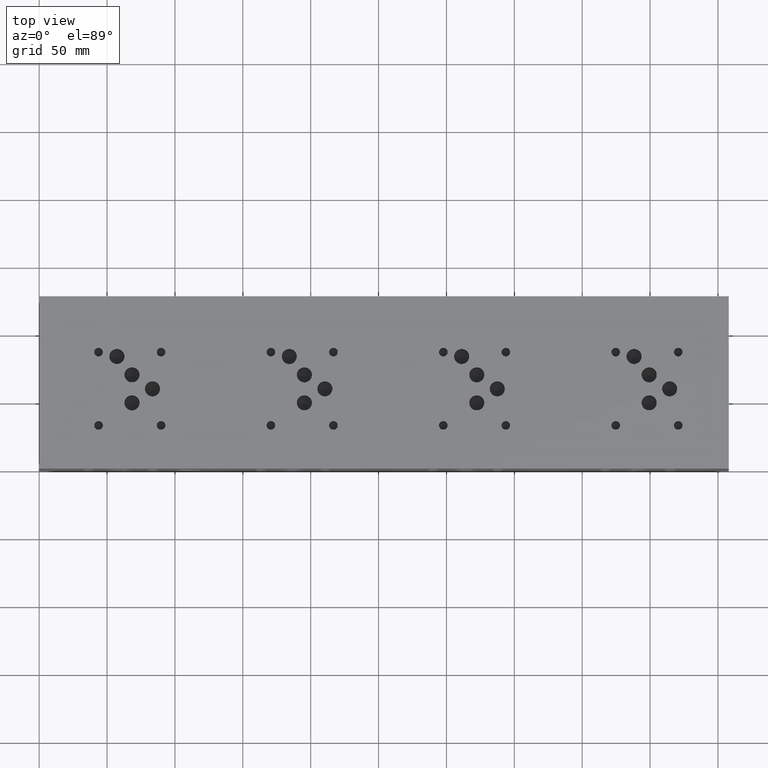
[diagram: clean part render]
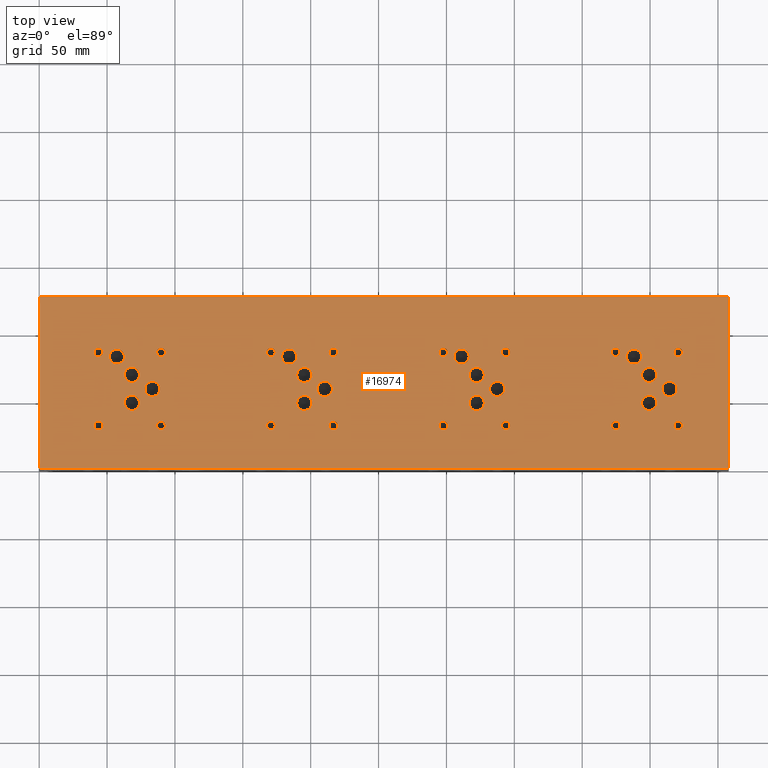
[diagram: same view with one face highlighted and labeled with its STEP entity id]
A machine part, top view. The second image highlights one B-rep face of the part: STEP entity #16974.
In plain terms, the highlighted planar face has unit normal (0, 0, 1).
Its self-contained STEP definition (entity closure, byte-faithful):
#575=CIRCLE('',#17510,5.56259999999998);
#576=CIRCLE('',#17511,5.56259999999998);
#579=CIRCLE('',#17516,5.56259999999998);
#580=CIRCLE('',#17517,5.56259999999998);
#583=CIRCLE('',#17522,5.56259999999998);
#584=CIRCLE('',#17523,5.56259999999998);
#587=CIRCLE('',#17528,5.56260000000002);
#588=CIRCLE('',#17529,5.56260000000002);
#595=CIRCLE('',#17542,5.56260000000002);
#596=CIRCLE('',#17543,5.56260000000002);
#599=CIRCLE('',#17548,5.56260000000002);
#600=CIRCLE('',#17549,5.56260000000002);
#603=CIRCLE('',#17554,5.56260000000002);
#604=CIRCLE('',#17555,5.56260000000002);
#607=CIRCLE('',#17560,5.56260000000002);
#608=CIRCLE('',#17561,5.56260000000002);
#903=CIRCLE('',#18092,5.56260000000002);
#904=CIRCLE('',#18093,5.56260000000002);
#907=CIRCLE('',#18098,5.56260000000002);
#908=CIRCLE('',#18099,5.56260000000002);
#911=CIRCLE('',#18104,5.56260000000002);
#912=CIRCLE('',#18105,5.56260000000002);
#915=CIRCLE('',#18110,5.56260000000002);
#916=CIRCLE('',#18111,5.56260000000002);
#919=CIRCLE('',#18116,5.5626);
#920=CIRCLE('',#18117,5.5626);
#923=CIRCLE('',#18122,5.5626);
#924=CIRCLE('',#18123,5.5626);
#927=CIRCLE('',#18128,5.5626);
#928=CIRCLE('',#18129,5.5626);
#931=CIRCLE('',#18134,5.5626);
#932=CIRCLE('',#18135,5.5626);
#940=CIRCLE('',#18147,3.175);
#941=CIRCLE('',#18148,3.175);
#947=CIRCLE('',#18158,3.175);
#948=CIRCLE('',#18159,3.175);
#954=CIRCLE('',#18169,3.175);
#955=CIRCLE('',#18170,3.175);
#961=CIRCLE('',#18180,3.175);
#962=CIRCLE('',#18181,3.175);
#968=CIRCLE('',#18191,3.175);
#969=CIRCLE('',#18192,3.175);
#975=CIRCLE('',#18202,3.175);
#976=CIRCLE('',#18203,3.175);
#982=CIRCLE('',#18213,3.175);
#983=CIRCLE('',#18214,3.175);
#989=CIRCLE('',#18224,3.175);
#990=CIRCLE('',#18225,3.175);
#996=CIRCLE('',#18235,3.175);
#997=CIRCLE('',#18236,3.175);
#1003=CIRCLE('',#18246,3.175);
#1004=CIRCLE('',#18247,3.175);
#1010=CIRCLE('',#18257,3.175);
#1011=CIRCLE('',#18258,3.175);
#1017=CIRCLE('',#18268,3.175);
#1018=CIRCLE('',#18269,3.175);
#1024=CIRCLE('',#18279,3.175);
#1025=CIRCLE('',#18280,3.175);
#1031=CIRCLE('',#18290,3.175);
#1032=CIRCLE('',#18291,3.175);
#1038=CIRCLE('',#18301,3.175);
#1039=CIRCLE('',#18302,3.175);
#1045=CIRCLE('',#18312,3.175);
#1046=CIRCLE('',#18313,3.175);
#1559=FACE_BOUND('',#3552,.T.);
#1560=FACE_BOUND('',#3553,.T.);
#1561=FACE_BOUND('',#3554,.T.);
#1562=FACE_BOUND('',#3555,.T.);
#1563=FACE_BOUND('',#3556,.T.);
#1564=FACE_BOUND('',#3557,.T.);
#1565=FACE_BOUND('',#3558,.T.);
#1566=FACE_BOUND('',#3559,.T.);
#1567=FACE_BOUND('',#3560,.T.);
#1568=FACE_BOUND('',#3561,.T.);
#1569=FACE_BOUND('',#3562,.T.);
#1570=FACE_BOUND('',#3563,.T.);
#1571=FACE_BOUND('',#3564,.T.);
#1572=FACE_BOUND('',#3565,.T.);
#1573=FACE_BOUND('',#3566,.T.);
#1574=FACE_BOUND('',#3567,.T.);
#1575=FACE_BOUND('',#3568,.T.);
#1576=FACE_BOUND('',#3569,.T.);
#1577=FACE_BOUND('',#3570,.T.);
#1578=FACE_BOUND('',#3571,.T.);
#1579=FACE_BOUND('',#3572,.T.);
#1580=FACE_BOUND('',#3573,.T.);
#1581=FACE_BOUND('',#3574,.T.);
#1582=FACE_BOUND('',#3575,.T.);
#1583=FACE_BOUND('',#3576,.T.);
#1584=FACE_BOUND('',#3577,.T.);
#1585=FACE_BOUND('',#3578,.T.);
#1586=FACE_BOUND('',#3579,.T.);
#1587=FACE_BOUND('',#3580,.T.);
#1588=FACE_BOUND('',#3581,.T.);
#1589=FACE_BOUND('',#3582,.T.);
#1590=FACE_BOUND('',#3583,.T.);
#2474=FACE_OUTER_BOUND('',#3551,.T.);
#3551=EDGE_LOOP('',(#15042,#15043,#15044,#15045));
#3552=EDGE_LOOP('',(#15046,#15047));
#3553=EDGE_LOOP('',(#15048,#15049));
#3554=EDGE_LOOP('',(#15050,#15051));
#3555=EDGE_LOOP('',(#15052,#15053));
#3556=EDGE_LOOP('',(#15054,#15055));
#3557=EDGE_LOOP('',(#15056,#15057));
#3558=EDGE_LOOP('',(#15058,#15059));
#3559=EDGE_LOOP('',(#15060,#15061));
#3560=EDGE_LOOP('',(#15062,#15063));
#3561=EDGE_LOOP('',(#15064,#15065));
#3562=EDGE_LOOP('',(#15066,#15067));
#3563=EDGE_LOOP('',(#15068,#15069));
#3564=EDGE_LOOP('',(#15070,#15071));
#3565=EDGE_LOOP('',(#15072,#15073));
#3566=EDGE_LOOP('',(#15074,#15075));
#3567=EDGE_LOOP('',(#15076,#15077));
#3568=EDGE_LOOP('',(#15078,#15079));
#3569=EDGE_LOOP('',(#15080,#15081));
#3570=EDGE_LOOP('',(#15082,#15083));
#3571=EDGE_LOOP('',(#15084,#15085));
#3572=EDGE_LOOP('',(#15086,#15087));
#3573=EDGE_LOOP('',(#15088,#15089));
#3574=EDGE_LOOP('',(#15090,#15091));
#3575=EDGE_LOOP('',(#15092,#15093));
#3576=EDGE_LOOP('',(#15094,#15095));
#3577=EDGE_LOOP('',(#15096,#15097));
#3578=EDGE_LOOP('',(#15098,#15099));
#3579=EDGE_LOOP('',(#15100,#15101));
#3580=EDGE_LOOP('',(#15102,#15103));
#3581=EDGE_LOOP('',(#15104,#15105));
#3582=EDGE_LOOP('',(#15106,#15107));
#3583=EDGE_LOOP('',(#15108,#15109));
#3620=LINE('',#22474,#5034);
#3948=LINE('',#24062,#5362);
#4006=LINE('',#24365,#5420);
#4998=LINE('',#29381,#6412);
#5034=VECTOR('',#18384,10.);
#5362=VECTOR('',#18940,10.);
#5420=VECTOR('',#19084,10.);
#6412=VECTOR('',#22390,10.);
#6437=VERTEX_POINT('',#22471);
#6438=VERTEX_POINT('',#22473);
#6920=VERTEX_POINT('',#24060);
#6994=VERTEX_POINT('',#24364);
#7527=VERTEX_POINT('',#27743);
#7528=VERTEX_POINT('',#27744);
#7532=VERTEX_POINT('',#27756);
#7533=VERTEX_POINT('',#27757);
#7537=VERTEX_POINT('',#27769);
#7538=VERTEX_POINT('',#27770);
#7542=VERTEX_POINT('',#27782);
#7543=VERTEX_POINT('',#27783);
#7553=VERTEX_POINT('',#27813);
#7554=VERTEX_POINT('',#27814);
#7558=VERTEX_POINT('',#27826);
#7559=VERTEX_POINT('',#27827);
#7563=VERTEX_POINT('',#27839);
#7564=VERTEX_POINT('',#27840);
#7568=VERTEX_POINT('',#27852);
#7569=VERTEX_POINT('',#27853);
#7926=VERTEX_POINT('',#28923);
#7927=VERTEX_POINT('',#28924);
#7931=VERTEX_POINT('',#28936);
#7932=VERTEX_POINT('',#28937);
#7936=VERTEX_POINT('',#28949);
#7937=VERTEX_POINT('',#28950);
#7941=VERTEX_POINT('',#28962);
#7942=VERTEX_POINT('',#28963);
#7946=VERTEX_POINT('',#28975);
#7947=VERTEX_POINT('',#28976);
#7951=VERTEX_POINT('',#28988);
#7952=VERTEX_POINT('',#28989);
#7956=VERTEX_POINT('',#29001);
#7957=VERTEX_POINT('',#29002);
#7961=VERTEX_POINT('',#29014);
#7962=VERTEX_POINT('',#29015);
#7972=VERTEX_POINT('',#29041);
#7973=VERTEX_POINT('',#29042);
#7980=VERTEX_POINT('',#29063);
#7981=VERTEX_POINT('',#29064);
#7988=VERTEX_POINT('',#29085);
#7989=VERTEX_POINT('',#29086);
#7996=VERTEX_POINT('',#29107);
#7997=VERTEX_POINT('',#29108);
#8004=VERTEX_POINT('',#29129);
#8005=VERTEX_POINT('',#29130);
#8012=VERTEX_POINT('',#29151);
#8013=VERTEX_POINT('',#29152);
#8020=VERTEX_POINT('',#29173);
#8021=VERTEX_POINT('',#29174);
#8028=VERTEX_POINT('',#29195);
#8029=VERTEX_POINT('',#29196);
#8036=VERTEX_POINT('',#29217);
#8037=VERTEX_POINT('',#29218);
#8044=VERTEX_POINT('',#29239);
#8045=VERTEX_POINT('',#29240);
#8052=VERTEX_POINT('',#29261);
#8053=VERTEX_POINT('',#29262);
#8060=VERTEX_POINT('',#29283);
#8061=VERTEX_POINT('',#29284);
#8068=VERTEX_POINT('',#29305);
#8069=VERTEX_POINT('',#29306);
#8076=VERTEX_POINT('',#29327);
#8077=VERTEX_POINT('',#29328);
#8084=VERTEX_POINT('',#29349);
#8085=VERTEX_POINT('',#29350);
#8092=VERTEX_POINT('',#29371);
#8093=VERTEX_POINT('',#29372);
#8129=EDGE_CURVE('',#6438,#6437,#3620,.T.);
#8661=EDGE_CURVE('',#6437,#6920,#3948,.T.);
#8759=EDGE_CURVE('',#6994,#6438,#4006,.T.);
#9697=EDGE_CURVE('',#7527,#7528,#575,.T.);
#9698=EDGE_CURVE('',#7528,#7527,#576,.T.);
#9703=EDGE_CURVE('',#7532,#7533,#579,.T.);
#9704=EDGE_CURVE('',#7533,#7532,#580,.T.);
#9709=EDGE_CURVE('',#7537,#7538,#583,.T.);
#9710=EDGE_CURVE('',#7538,#7537,#584,.T.);
#9715=EDGE_CURVE('',#7542,#7543,#587,.T.);
#9716=EDGE_CURVE('',#7543,#7542,#588,.T.);
#9729=EDGE_CURVE('',#7553,#7554,#595,.T.);
#9730=EDGE_CURVE('',#7554,#7553,#596,.T.);
#9735=EDGE_CURVE('',#7558,#7559,#599,.T.);
#9736=EDGE_CURVE('',#7559,#7558,#600,.T.);
#9741=EDGE_CURVE('',#7563,#7564,#603,.T.);
#9742=EDGE_CURVE('',#7564,#7563,#604,.T.);
#9747=EDGE_CURVE('',#7568,#7569,#607,.T.);
#9748=EDGE_CURVE('',#7569,#7568,#608,.T.);
#10224=EDGE_CURVE('',#7926,#7927,#903,.T.);
#10225=EDGE_CURVE('',#7927,#7926,#904,.T.);
#10230=EDGE_CURVE('',#7931,#7932,#907,.T.);
#10231=EDGE_CURVE('',#7932,#7931,#908,.T.);
#10236=EDGE_CURVE('',#7936,#7937,#911,.T.);
#10237=EDGE_CURVE('',#7937,#7936,#912,.T.);
#10242=EDGE_CURVE('',#7941,#7942,#915,.T.);
#10243=EDGE_CURVE('',#7942,#7941,#916,.T.);
#10248=EDGE_CURVE('',#7946,#7947,#919,.T.);
#10249=EDGE_CURVE('',#7947,#7946,#920,.T.);
#10254=EDGE_CURVE('',#7951,#7952,#923,.T.);
#10255=EDGE_CURVE('',#7952,#7951,#924,.T.);
#10260=EDGE_CURVE('',#7956,#7957,#927,.T.);
#10261=EDGE_CURVE('',#7957,#7956,#928,.T.);
#10266=EDGE_CURVE('',#7961,#7962,#931,.T.);
#10267=EDGE_CURVE('',#7962,#7961,#932,.T.);
#10278=EDGE_CURVE('',#7972,#7973,#940,.T.);
#10279=EDGE_CURVE('',#7973,#7972,#941,.T.);
#10288=EDGE_CURVE('',#7980,#7981,#947,.T.);
#10289=EDGE_CURVE('',#7981,#7980,#948,.T.);
#10298=EDGE_CURVE('',#7988,#7989,#954,.T.);
#10299=EDGE_CURVE('',#7989,#7988,#955,.T.);
#10308=EDGE_CURVE('',#7996,#7997,#961,.T.);
#10309=EDGE_CURVE('',#7997,#7996,#962,.T.);
#10318=EDGE_CURVE('',#8004,#8005,#968,.T.);
#10319=EDGE_CURVE('',#8005,#8004,#969,.T.);
#10328=EDGE_CURVE('',#8012,#8013,#975,.T.);
#10329=EDGE_CURVE('',#8013,#8012,#976,.T.);
#10338=EDGE_CURVE('',#8020,#8021,#982,.T.);
#10339=EDGE_CURVE('',#8021,#8020,#983,.T.);
#10348=EDGE_CURVE('',#8028,#8029,#989,.T.);
#10349=EDGE_CURVE('',#8029,#8028,#990,.T.);
#10358=EDGE_CURVE('',#8036,#8037,#996,.T.);
#10359=EDGE_CURVE('',#8037,#8036,#997,.T.);
#10368=EDGE_CURVE('',#8044,#8045,#1003,.T.);
#10369=EDGE_CURVE('',#8045,#8044,#1004,.T.);
#10378=EDGE_CURVE('',#8052,#8053,#1010,.T.);
#10379=EDGE_CURVE('',#8053,#8052,#1011,.T.);
#10388=EDGE_CURVE('',#8060,#8061,#1017,.T.);
#10389=EDGE_CURVE('',#8061,#8060,#1018,.T.);
#10398=EDGE_CURVE('',#8068,#8069,#1024,.T.);
#10399=EDGE_CURVE('',#8069,#8068,#1025,.T.);
#10408=EDGE_CURVE('',#8076,#8077,#1031,.T.);
#10409=EDGE_CURVE('',#8077,#8076,#1032,.T.);
#10418=EDGE_CURVE('',#8084,#8085,#1038,.T.);
#10419=EDGE_CURVE('',#8085,#8084,#1039,.T.);
#10428=EDGE_CURVE('',#8092,#8093,#1045,.T.);
#10429=EDGE_CURVE('',#8093,#8092,#1046,.T.);
#10433=EDGE_CURVE('',#6920,#6994,#4998,.T.);
#15042=ORIENTED_EDGE('',*,*,#8129,.T.);
#15043=ORIENTED_EDGE('',*,*,#8661,.T.);
#15044=ORIENTED_EDGE('',*,*,#10433,.T.);
#15045=ORIENTED_EDGE('',*,*,#8759,.T.);
#15046=ORIENTED_EDGE('',*,*,#9697,.T.);
#15047=ORIENTED_EDGE('',*,*,#9698,.T.);
#15048=ORIENTED_EDGE('',*,*,#9703,.T.);
#15049=ORIENTED_EDGE('',*,*,#9704,.T.);
#15050=ORIENTED_EDGE('',*,*,#9709,.T.);
#15051=ORIENTED_EDGE('',*,*,#9710,.T.);
#15052=ORIENTED_EDGE('',*,*,#9715,.T.);
#15053=ORIENTED_EDGE('',*,*,#9716,.T.);
#15054=ORIENTED_EDGE('',*,*,#9729,.T.);
#15055=ORIENTED_EDGE('',*,*,#9730,.T.);
#15056=ORIENTED_EDGE('',*,*,#9735,.T.);
#15057=ORIENTED_EDGE('',*,*,#9736,.T.);
#15058=ORIENTED_EDGE('',*,*,#9741,.T.);
#15059=ORIENTED_EDGE('',*,*,#9742,.T.);
#15060=ORIENTED_EDGE('',*,*,#9747,.T.);
#15061=ORIENTED_EDGE('',*,*,#9748,.T.);
#15062=ORIENTED_EDGE('',*,*,#10224,.T.);
#15063=ORIENTED_EDGE('',*,*,#10225,.T.);
#15064=ORIENTED_EDGE('',*,*,#10230,.T.);
#15065=ORIENTED_EDGE('',*,*,#10231,.T.);
#15066=ORIENTED_EDGE('',*,*,#10236,.T.);
#15067=ORIENTED_EDGE('',*,*,#10237,.T.);
#15068=ORIENTED_EDGE('',*,*,#10242,.T.);
#15069=ORIENTED_EDGE('',*,*,#10243,.T.);
#15070=ORIENTED_EDGE('',*,*,#10248,.T.);
#15071=ORIENTED_EDGE('',*,*,#10249,.T.);
#15072=ORIENTED_EDGE('',*,*,#10254,.T.);
#15073=ORIENTED_EDGE('',*,*,#10255,.T.);
#15074=ORIENTED_EDGE('',*,*,#10260,.T.);
#15075=ORIENTED_EDGE('',*,*,#10261,.T.);
#15076=ORIENTED_EDGE('',*,*,#10266,.T.);
#15077=ORIENTED_EDGE('',*,*,#10267,.T.);
#15078=ORIENTED_EDGE('',*,*,#10278,.T.);
#15079=ORIENTED_EDGE('',*,*,#10279,.T.);
#15080=ORIENTED_EDGE('',*,*,#10288,.T.);
#15081=ORIENTED_EDGE('',*,*,#10289,.T.);
#15082=ORIENTED_EDGE('',*,*,#10298,.T.);
#15083=ORIENTED_EDGE('',*,*,#10299,.T.);
#15084=ORIENTED_EDGE('',*,*,#10308,.T.);
#15085=ORIENTED_EDGE('',*,*,#10309,.T.);
#15086=ORIENTED_EDGE('',*,*,#10318,.T.);
#15087=ORIENTED_EDGE('',*,*,#10319,.T.);
#15088=ORIENTED_EDGE('',*,*,#10328,.T.);
#15089=ORIENTED_EDGE('',*,*,#10329,.T.);
#15090=ORIENTED_EDGE('',*,*,#10338,.T.);
#15091=ORIENTED_EDGE('',*,*,#10339,.T.);
#15092=ORIENTED_EDGE('',*,*,#10348,.T.);
#15093=ORIENTED_EDGE('',*,*,#10349,.T.);
#15094=ORIENTED_EDGE('',*,*,#10358,.T.);
#15095=ORIENTED_EDGE('',*,*,#10359,.T.);
#15096=ORIENTED_EDGE('',*,*,#10368,.T.);
#15097=ORIENTED_EDGE('',*,*,#10369,.T.);
#15098=ORIENTED_EDGE('',*,*,#10378,.T.);
#15099=ORIENTED_EDGE('',*,*,#10379,.T.);
#15100=ORIENTED_EDGE('',*,*,#10388,.T.);
#15101=ORIENTED_EDGE('',*,*,#10389,.T.);
#15102=ORIENTED_EDGE('',*,*,#10398,.T.);
#15103=ORIENTED_EDGE('',*,*,#10399,.T.);
#15104=ORIENTED_EDGE('',*,*,#10408,.T.);
#15105=ORIENTED_EDGE('',*,*,#10409,.T.);
#15106=ORIENTED_EDGE('',*,*,#10418,.T.);
#15107=ORIENTED_EDGE('',*,*,#10419,.T.);
#15108=ORIENTED_EDGE('',*,*,#10428,.T.);
#15109=ORIENTED_EDGE('',*,*,#10429,.T.);
#15570=PLANE('',#18319);
#16974=ADVANCED_FACE('',(#2474,#1559,#1560,#1561,#1562,#1563,#1564,#1565,
#1566,#1567,#1568,#1569,#1570,#1571,#1572,#1573,#1574,#1575,#1576,#1577,
#1578,#1579,#1580,#1581,#1582,#1583,#1584,#1585,#1586,#1587,#1588,#1589,
#1590),#15570,.T.);
#17510=AXIS2_PLACEMENT_3D('',#27745,#20512,#20513);
#17511=AXIS2_PLACEMENT_3D('',#27746,#20514,#20515);
#17516=AXIS2_PLACEMENT_3D('',#27758,#20526,#20527);
#17517=AXIS2_PLACEMENT_3D('',#27759,#20528,#20529);
#17522=AXIS2_PLACEMENT_3D('',#27771,#20540,#20541);
#17523=AXIS2_PLACEMENT_3D('',#27772,#20542,#20543);
#17528=AXIS2_PLACEMENT_3D('',#27784,#20554,#20555);
#17529=AXIS2_PLACEMENT_3D('',#27785,#20556,#20557);
#17542=AXIS2_PLACEMENT_3D('',#27815,#20588,#20589);
#17543=AXIS2_PLACEMENT_3D('',#27816,#20590,#20591);
#17548=AXIS2_PLACEMENT_3D('',#27828,#20602,#20603);
#17549=AXIS2_PLACEMENT_3D('',#27829,#20604,#20605);
#17554=AXIS2_PLACEMENT_3D('',#27841,#20616,#20617);
#17555=AXIS2_PLACEMENT_3D('',#27842,#20618,#20619);
#17560=AXIS2_PLACEMENT_3D('',#27854,#20630,#20631);
#17561=AXIS2_PLACEMENT_3D('',#27855,#20632,#20633);
#18092=AXIS2_PLACEMENT_3D('',#28925,#21875,#21876);
#18093=AXIS2_PLACEMENT_3D('',#28926,#21877,#21878);
#18098=AXIS2_PLACEMENT_3D('',#28938,#21889,#21890);
#18099=AXIS2_PLACEMENT_3D('',#28939,#21891,#21892);
#18104=AXIS2_PLACEMENT_3D('',#28951,#21903,#21904);
#18105=AXIS2_PLACEMENT_3D('',#28952,#21905,#21906);
#18110=AXIS2_PLACEMENT_3D('',#28964,#21917,#21918);
#18111=AXIS2_PLACEMENT_3D('',#28965,#21919,#21920);
#18116=AXIS2_PLACEMENT_3D('',#28977,#21931,#21932);
#18117=AXIS2_PLACEMENT_3D('',#28978,#21933,#21934);
#18122=AXIS2_PLACEMENT_3D('',#28990,#21945,#21946);
#18123=AXIS2_PLACEMENT_3D('',#28991,#21947,#21948);
#18128=AXIS2_PLACEMENT_3D('',#29003,#21959,#21960);
#18129=AXIS2_PLACEMENT_3D('',#29004,#21961,#21962);
#18134=AXIS2_PLACEMENT_3D('',#29016,#21973,#21974);
#18135=AXIS2_PLACEMENT_3D('',#29017,#21975,#21976);
#18147=AXIS2_PLACEMENT_3D('',#29043,#22002,#22003);
#18148=AXIS2_PLACEMENT_3D('',#29044,#22004,#22005);
#18158=AXIS2_PLACEMENT_3D('',#29065,#22027,#22028);
#18159=AXIS2_PLACEMENT_3D('',#29066,#22029,#22030);
#18169=AXIS2_PLACEMENT_3D('',#29087,#22052,#22053);
#18170=AXIS2_PLACEMENT_3D('',#29088,#22054,#22055);
#18180=AXIS2_PLACEMENT_3D('',#29109,#22077,#22078);
#18181=AXIS2_PLACEMENT_3D('',#29110,#22079,#22080);
#18191=AXIS2_PLACEMENT_3D('',#29131,#22102,#22103);
#18192=AXIS2_PLACEMENT_3D('',#29132,#22104,#22105);
#18202=AXIS2_PLACEMENT_3D('',#29153,#22127,#22128);
#18203=AXIS2_PLACEMENT_3D('',#29154,#22129,#22130);
#18213=AXIS2_PLACEMENT_3D('',#29175,#22152,#22153);
#18214=AXIS2_PLACEMENT_3D('',#29176,#22154,#22155);
#18224=AXIS2_PLACEMENT_3D('',#29197,#22177,#22178);
#18225=AXIS2_PLACEMENT_3D('',#29198,#22179,#22180);
#18235=AXIS2_PLACEMENT_3D('',#29219,#22202,#22203);
#18236=AXIS2_PLACEMENT_3D('',#29220,#22204,#22205);
#18246=AXIS2_PLACEMENT_3D('',#29241,#22227,#22228);
#18247=AXIS2_PLACEMENT_3D('',#29242,#22229,#22230);
#18257=AXIS2_PLACEMENT_3D('',#29263,#22252,#22253);
#18258=AXIS2_PLACEMENT_3D('',#29264,#22254,#22255);
#18268=AXIS2_PLACEMENT_3D('',#29285,#22277,#22278);
#18269=AXIS2_PLACEMENT_3D('',#29286,#22279,#22280);
#18279=AXIS2_PLACEMENT_3D('',#29307,#22302,#22303);
#18280=AXIS2_PLACEMENT_3D('',#29308,#22304,#22305);
#18290=AXIS2_PLACEMENT_3D('',#29329,#22327,#22328);
#18291=AXIS2_PLACEMENT_3D('',#29330,#22329,#22330);
#18301=AXIS2_PLACEMENT_3D('',#29351,#22352,#22353);
#18302=AXIS2_PLACEMENT_3D('',#29352,#22354,#22355);
#18312=AXIS2_PLACEMENT_3D('',#29373,#22377,#22378);
#18313=AXIS2_PLACEMENT_3D('',#29374,#22379,#22380);
#18319=AXIS2_PLACEMENT_3D('',#29384,#22395,#22396);
#18384=DIRECTION('',(1.,0.,0.));
#18940=DIRECTION('',(0.,1.,0.));
#19084=DIRECTION('',(0.,-1.,0.));
#20512=DIRECTION('center_axis',(0.,0.,-1.));
#20513=DIRECTION('ref_axis',(1.,0.,0.));
#20514=DIRECTION('center_axis',(0.,0.,-1.));
#20515=DIRECTION('ref_axis',(1.,0.,0.));
#20526=DIRECTION('center_axis',(0.,0.,-1.));
#20527=DIRECTION('ref_axis',(1.,0.,0.));
#20528=DIRECTION('center_axis',(0.,0.,-1.));
#20529=DIRECTION('ref_axis',(1.,0.,0.));
#20540=DIRECTION('center_axis',(0.,0.,-1.));
#20541=DIRECTION('ref_axis',(1.,0.,0.));
#20542=DIRECTION('center_axis',(0.,0.,-1.));
#20543=DIRECTION('ref_axis',(1.,0.,0.));
#20554=DIRECTION('center_axis',(0.,0.,-1.));
#20555=DIRECTION('ref_axis',(1.,0.,0.));
#20556=DIRECTION('center_axis',(0.,0.,-1.));
#20557=DIRECTION('ref_axis',(1.,0.,0.));
#20588=DIRECTION('center_axis',(0.,0.,-1.));
#20589=DIRECTION('ref_axis',(1.,0.,0.));
#20590=DIRECTION('center_axis',(0.,0.,-1.));
#20591=DIRECTION('ref_axis',(1.,0.,0.));
#20602=DIRECTION('center_axis',(0.,0.,-1.));
#20603=DIRECTION('ref_axis',(1.,0.,0.));
#20604=DIRECTION('center_axis',(0.,0.,-1.));
#20605=DIRECTION('ref_axis',(1.,0.,0.));
#20616=DIRECTION('center_axis',(0.,0.,-1.));
#20617=DIRECTION('ref_axis',(1.,0.,0.));
#20618=DIRECTION('center_axis',(0.,0.,-1.));
#20619=DIRECTION('ref_axis',(1.,0.,0.));
#20630=DIRECTION('center_axis',(0.,0.,-1.));
#20631=DIRECTION('ref_axis',(1.,0.,0.));
#20632=DIRECTION('center_axis',(0.,0.,-1.));
#20633=DIRECTION('ref_axis',(1.,0.,0.));
#21875=DIRECTION('center_axis',(0.,0.,-1.));
#21876=DIRECTION('ref_axis',(1.,0.,0.));
#21877=DIRECTION('center_axis',(0.,0.,-1.));
#21878=DIRECTION('ref_axis',(1.,0.,0.));
#21889=DIRECTION('center_axis',(0.,0.,-1.));
#21890=DIRECTION('ref_axis',(1.,0.,0.));
#21891=DIRECTION('center_axis',(0.,0.,-1.));
#21892=DIRECTION('ref_axis',(1.,0.,0.));
#21903=DIRECTION('center_axis',(0.,0.,-1.));
#21904=DIRECTION('ref_axis',(1.,0.,0.));
#21905=DIRECTION('center_axis',(0.,0.,-1.));
#21906=DIRECTION('ref_axis',(1.,0.,0.));
#21917=DIRECTION('center_axis',(0.,0.,-1.));
#21918=DIRECTION('ref_axis',(1.,0.,0.));
#21919=DIRECTION('center_axis',(0.,0.,-1.));
#21920=DIRECTION('ref_axis',(1.,0.,0.));
#21931=DIRECTION('center_axis',(0.,0.,-1.));
#21932=DIRECTION('ref_axis',(1.,0.,0.));
#21933=DIRECTION('center_axis',(0.,0.,-1.));
#21934=DIRECTION('ref_axis',(1.,0.,0.));
#21945=DIRECTION('center_axis',(0.,0.,-1.));
#21946=DIRECTION('ref_axis',(1.,0.,0.));
#21947=DIRECTION('center_axis',(0.,0.,-1.));
#21948=DIRECTION('ref_axis',(1.,0.,0.));
#21959=DIRECTION('center_axis',(0.,0.,-1.));
#21960=DIRECTION('ref_axis',(1.,0.,0.));
#21961=DIRECTION('center_axis',(0.,0.,-1.));
#21962=DIRECTION('ref_axis',(1.,0.,0.));
#21973=DIRECTION('center_axis',(0.,0.,-1.));
#21974=DIRECTION('ref_axis',(1.,0.,0.));
#21975=DIRECTION('center_axis',(0.,0.,-1.));
#21976=DIRECTION('ref_axis',(1.,0.,0.));
#22002=DIRECTION('center_axis',(0.,0.,-1.));
#22003=DIRECTION('ref_axis',(1.,0.,0.));
#22004=DIRECTION('center_axis',(0.,0.,-1.));
#22005=DIRECTION('ref_axis',(1.,0.,0.));
#22027=DIRECTION('center_axis',(0.,0.,-1.));
#22028=DIRECTION('ref_axis',(1.,0.,0.));
#22029=DIRECTION('center_axis',(0.,0.,-1.));
#22030=DIRECTION('ref_axis',(1.,0.,0.));
#22052=DIRECTION('center_axis',(0.,0.,-1.));
#22053=DIRECTION('ref_axis',(1.,0.,0.));
#22054=DIRECTION('center_axis',(0.,0.,-1.));
#22055=DIRECTION('ref_axis',(1.,0.,0.));
#22077=DIRECTION('center_axis',(0.,0.,-1.));
#22078=DIRECTION('ref_axis',(1.,0.,0.));
#22079=DIRECTION('center_axis',(0.,0.,-1.));
#22080=DIRECTION('ref_axis',(1.,0.,0.));
#22102=DIRECTION('center_axis',(0.,0.,-1.));
#22103=DIRECTION('ref_axis',(1.,0.,0.));
#22104=DIRECTION('center_axis',(0.,0.,-1.));
#22105=DIRECTION('ref_axis',(1.,0.,0.));
#22127=DIRECTION('center_axis',(0.,0.,-1.));
#22128=DIRECTION('ref_axis',(1.,0.,0.));
#22129=DIRECTION('center_axis',(0.,0.,-1.));
#22130=DIRECTION('ref_axis',(1.,0.,0.));
#22152=DIRECTION('center_axis',(0.,0.,-1.));
#22153=DIRECTION('ref_axis',(1.,0.,0.));
#22154=DIRECTION('center_axis',(0.,0.,-1.));
#22155=DIRECTION('ref_axis',(1.,0.,0.));
#22177=DIRECTION('center_axis',(0.,0.,-1.));
#22178=DIRECTION('ref_axis',(1.,0.,0.));
#22179=DIRECTION('center_axis',(0.,0.,-1.));
#22180=DIRECTION('ref_axis',(1.,0.,0.));
#22202=DIRECTION('center_axis',(0.,0.,-1.));
#22203=DIRECTION('ref_axis',(1.,0.,0.));
#22204=DIRECTION('center_axis',(0.,0.,-1.));
#22205=DIRECTION('ref_axis',(1.,0.,0.));
#22227=DIRECTION('center_axis',(0.,0.,-1.));
#22228=DIRECTION('ref_axis',(1.,0.,0.));
#22229=DIRECTION('center_axis',(0.,0.,-1.));
#22230=DIRECTION('ref_axis',(1.,0.,0.));
#22252=DIRECTION('center_axis',(0.,0.,-1.));
#22253=DIRECTION('ref_axis',(1.,0.,0.));
#22254=DIRECTION('center_axis',(0.,0.,-1.));
#22255=DIRECTION('ref_axis',(1.,0.,0.));
#22277=DIRECTION('center_axis',(0.,0.,-1.));
#22278=DIRECTION('ref_axis',(1.,0.,0.));
#22279=DIRECTION('center_axis',(0.,0.,-1.));
#22280=DIRECTION('ref_axis',(1.,0.,0.));
#22302=DIRECTION('center_axis',(0.,0.,-1.));
#22303=DIRECTION('ref_axis',(1.,0.,0.));
#22304=DIRECTION('center_axis',(0.,0.,-1.));
#22305=DIRECTION('ref_axis',(1.,0.,0.));
#22327=DIRECTION('center_axis',(0.,0.,-1.));
#22328=DIRECTION('ref_axis',(1.,0.,0.));
#22329=DIRECTION('center_axis',(0.,0.,-1.));
#22330=DIRECTION('ref_axis',(1.,0.,0.));
#22352=DIRECTION('center_axis',(0.,0.,-1.));
#22353=DIRECTION('ref_axis',(1.,0.,0.));
#22354=DIRECTION('center_axis',(0.,0.,-1.));
#22355=DIRECTION('ref_axis',(1.,0.,0.));
#22377=DIRECTION('center_axis',(0.,0.,-1.));
#22378=DIRECTION('ref_axis',(1.,0.,0.));
#22379=DIRECTION('center_axis',(0.,0.,-1.));
#22380=DIRECTION('ref_axis',(1.,0.,0.));
#22390=DIRECTION('',(-1.,0.,0.));
#22395=DIRECTION('center_axis',(0.,0.,1.));
#22396=DIRECTION('ref_axis',(1.,0.,0.));
#22471=CARTESIAN_POINT('',(508.,0.,127.));
#22473=CARTESIAN_POINT('',(0.,0.,127.));
#22474=CARTESIAN_POINT('',(0.,0.,127.));
#24060=CARTESIAN_POINT('',(508.,127.,127.));
#24062=CARTESIAN_POINT('',(508.,0.,127.));
#24364=CARTESIAN_POINT('',(0.,127.,127.));
#24365=CARTESIAN_POINT('',(0.,127.,127.));
#27743=CARTESIAN_POINT('',(200.8632,48.4378,127.));
#27744=CARTESIAN_POINT('',(189.738,48.4378,127.));
#27745=CARTESIAN_POINT('Origin',(195.3006,48.4378,127.));
#27746=CARTESIAN_POINT('Origin',(195.3006,48.4378,127.));
#27756=CARTESIAN_POINT('',(200.8632,69.0626,127.));
#27757=CARTESIAN_POINT('',(189.738,69.0626,127.));
#27758=CARTESIAN_POINT('Origin',(195.3006,69.0626,127.));
#27759=CARTESIAN_POINT('Origin',(195.3006,69.0626,127.));
#27769=CARTESIAN_POINT('',(189.738,82.5754,127.));
#27770=CARTESIAN_POINT('',(178.6128,82.5754,127.));
#27771=CARTESIAN_POINT('Origin',(184.1754,82.5754,127.));
#27772=CARTESIAN_POINT('Origin',(184.1754,82.5754,127.));
#27782=CARTESIAN_POINT('',(215.9508,58.7502,127.));
#27783=CARTESIAN_POINT('',(204.8256,58.7502,127.));
#27784=CARTESIAN_POINT('Origin',(210.3882,58.7502,127.));
#27785=CARTESIAN_POINT('Origin',(210.3882,58.7502,127.));
#27813=CARTESIAN_POINT('',(454.8632,48.4378,127.));
#27814=CARTESIAN_POINT('',(443.738,48.4378,127.));
#27815=CARTESIAN_POINT('Origin',(449.3006,48.4378,127.));
#27816=CARTESIAN_POINT('Origin',(449.3006,48.4378,127.));
#27826=CARTESIAN_POINT('',(454.8632,69.0626,127.));
#27827=CARTESIAN_POINT('',(443.738,69.0626,127.));
#27828=CARTESIAN_POINT('Origin',(449.3006,69.0626,127.));
#27829=CARTESIAN_POINT('Origin',(449.3006,69.0626,127.));
#27839=CARTESIAN_POINT('',(443.738,82.5754,127.));
#27840=CARTESIAN_POINT('',(432.6128,82.5754,127.));
#27841=CARTESIAN_POINT('Origin',(438.1754,82.5754,127.));
#27842=CARTESIAN_POINT('Origin',(438.1754,82.5754,127.));
#27852=CARTESIAN_POINT('',(469.9508,58.7502,127.));
#27853=CARTESIAN_POINT('',(458.8256,58.7502,127.));
#27854=CARTESIAN_POINT('Origin',(464.3882,58.7502,127.));
#27855=CARTESIAN_POINT('Origin',(464.3882,58.7502,127.));
#28923=CARTESIAN_POINT('',(327.8632,48.4378,127.));
#28924=CARTESIAN_POINT('',(316.738,48.4378,127.));
#28925=CARTESIAN_POINT('Origin',(322.3006,48.4378,127.));
#28926=CARTESIAN_POINT('Origin',(322.3006,48.4378,127.));
#28936=CARTESIAN_POINT('',(327.8632,69.0626,127.));
#28937=CARTESIAN_POINT('',(316.738,69.0626,127.));
#28938=CARTESIAN_POINT('Origin',(322.3006,69.0626,127.));
#28939=CARTESIAN_POINT('Origin',(322.3006,69.0626,127.));
#28949=CARTESIAN_POINT('',(316.738,82.5754,127.));
#28950=CARTESIAN_POINT('',(305.6128,82.5754,127.));
#28951=CARTESIAN_POINT('Origin',(311.1754,82.5754,127.));
#28952=CARTESIAN_POINT('Origin',(311.1754,82.5754,127.));
#28962=CARTESIAN_POINT('',(342.9508,58.7502,127.));
#28963=CARTESIAN_POINT('',(331.8256,58.7502,127.));
#28964=CARTESIAN_POINT('Origin',(337.3882,58.7502,127.));
#28965=CARTESIAN_POINT('Origin',(337.3882,58.7502,127.));
#28975=CARTESIAN_POINT('',(73.85558,48.43272,127.));
#28976=CARTESIAN_POINT('',(62.73038,48.43272,127.));
#28977=CARTESIAN_POINT('Origin',(68.29298,48.43272,127.));
#28978=CARTESIAN_POINT('Origin',(68.29298,48.43272,127.));
#28988=CARTESIAN_POINT('',(73.8505,69.06768,127.));
#28989=CARTESIAN_POINT('',(62.7253,69.06768,127.));
#28990=CARTESIAN_POINT('Origin',(68.2879,69.06768,127.));
#28991=CARTESIAN_POINT('Origin',(68.2879,69.06768,127.));
#29001=CARTESIAN_POINT('',(62.738,82.5754,127.));
#29002=CARTESIAN_POINT('',(51.6128,82.5754,127.));
#29003=CARTESIAN_POINT('Origin',(57.1754,82.5754,127.));
#29004=CARTESIAN_POINT('Origin',(57.1754,82.5754,127.));
#29014=CARTESIAN_POINT('',(88.9508,58.7502,127.));
#29015=CARTESIAN_POINT('',(77.8256,58.7502,127.));
#29016=CARTESIAN_POINT('Origin',(83.3882,58.7502,127.));
#29017=CARTESIAN_POINT('Origin',(83.3882,58.7502,127.));
#29041=CARTESIAN_POINT('',(219.8878,31.7754,127.));
#29042=CARTESIAN_POINT('',(213.5378,31.7754,127.));
#29043=CARTESIAN_POINT('Origin',(216.7128,31.7754,127.));
#29044=CARTESIAN_POINT('Origin',(216.7128,31.7754,127.));
#29063=CARTESIAN_POINT('',(173.8376,85.7504,127.));
#29064=CARTESIAN_POINT('',(167.4876,85.7504,127.));
#29065=CARTESIAN_POINT('Origin',(170.6626,85.7504,127.));
#29066=CARTESIAN_POINT('Origin',(170.6626,85.7504,127.));
#29085=CARTESIAN_POINT('',(473.8878,31.7754,127.));
#29086=CARTESIAN_POINT('',(467.5378,31.7754,127.));
#29087=CARTESIAN_POINT('Origin',(470.7128,31.7754,127.));
#29088=CARTESIAN_POINT('Origin',(470.7128,31.7754,127.));
#29107=CARTESIAN_POINT('',(427.8376,85.7504,127.));
#29108=CARTESIAN_POINT('',(421.4876,85.7504,127.));
#29109=CARTESIAN_POINT('Origin',(424.6626,85.7504,127.));
#29110=CARTESIAN_POINT('Origin',(424.6626,85.7504,127.));
#29129=CARTESIAN_POINT('',(346.8878,31.7754,127.));
#29130=CARTESIAN_POINT('',(340.5378,31.7754,127.));
#29131=CARTESIAN_POINT('Origin',(343.7128,31.7754,127.));
#29132=CARTESIAN_POINT('Origin',(343.7128,31.7754,127.));
#29151=CARTESIAN_POINT('',(300.8376,85.7504,127.));
#29152=CARTESIAN_POINT('',(294.4876,85.7504,127.));
#29153=CARTESIAN_POINT('Origin',(297.6626,85.7504,127.));
#29154=CARTESIAN_POINT('Origin',(297.6626,85.7504,127.));
#29173=CARTESIAN_POINT('',(92.8878,31.7627,127.));
#29174=CARTESIAN_POINT('',(86.5378,31.7627,127.));
#29175=CARTESIAN_POINT('Origin',(89.7128,31.7627,127.));
#29176=CARTESIAN_POINT('Origin',(89.7128,31.7627,127.));
#29195=CARTESIAN_POINT('',(46.8376,85.7504,127.));
#29196=CARTESIAN_POINT('',(40.4876,85.7504,127.));
#29197=CARTESIAN_POINT('Origin',(43.6626,85.7504,127.));
#29198=CARTESIAN_POINT('Origin',(43.6626,85.7504,127.));
#29217=CARTESIAN_POINT('',(92.8878,85.7377,127.));
#29218=CARTESIAN_POINT('',(86.5378,85.7377,127.));
#29219=CARTESIAN_POINT('Origin',(89.7128,85.7377,127.));
#29220=CARTESIAN_POINT('Origin',(89.7128,85.7377,127.));
#29239=CARTESIAN_POINT('',(46.8503,31.7627,127.));
#29240=CARTESIAN_POINT('',(40.5003,31.7627,127.));
#29241=CARTESIAN_POINT('Origin',(43.6753,31.7627,127.));
#29242=CARTESIAN_POINT('Origin',(43.6753,31.7627,127.));
#29261=CARTESIAN_POINT('',(346.8878,85.7504,127.));
#29262=CARTESIAN_POINT('',(340.5378,85.7504,127.));
#29263=CARTESIAN_POINT('Origin',(343.7128,85.7504,127.));
#29264=CARTESIAN_POINT('Origin',(343.7128,85.7504,127.));
#29283=CARTESIAN_POINT('',(300.8376,31.7754,127.));
#29284=CARTESIAN_POINT('',(294.4876,31.7754,127.));
#29285=CARTESIAN_POINT('Origin',(297.6626,31.7754,127.));
#29286=CARTESIAN_POINT('Origin',(297.6626,31.7754,127.));
#29305=CARTESIAN_POINT('',(473.8878,85.7504,127.));
#29306=CARTESIAN_POINT('',(467.5378,85.7504,127.));
#29307=CARTESIAN_POINT('Origin',(470.7128,85.7504,127.));
#29308=CARTESIAN_POINT('Origin',(470.7128,85.7504,127.));
#29327=CARTESIAN_POINT('',(427.8376,31.7754,127.));
#29328=CARTESIAN_POINT('',(421.4876,31.7754,127.));
#29329=CARTESIAN_POINT('Origin',(424.6626,31.7754,127.));
#29330=CARTESIAN_POINT('Origin',(424.6626,31.7754,127.));
#29349=CARTESIAN_POINT('',(219.8878,85.7504,127.));
#29350=CARTESIAN_POINT('',(213.5378,85.7504,127.));
#29351=CARTESIAN_POINT('Origin',(216.7128,85.7504,127.));
#29352=CARTESIAN_POINT('Origin',(216.7128,85.7504,127.));
#29371=CARTESIAN_POINT('',(173.8376,31.7754,127.));
#29372=CARTESIAN_POINT('',(167.4876,31.7754,127.));
#29373=CARTESIAN_POINT('Origin',(170.6626,31.7754,127.));
#29374=CARTESIAN_POINT('Origin',(170.6626,31.7754,127.));
#29381=CARTESIAN_POINT('',(508.,127.,127.));
#29384=CARTESIAN_POINT('Origin',(254.,63.5,127.));